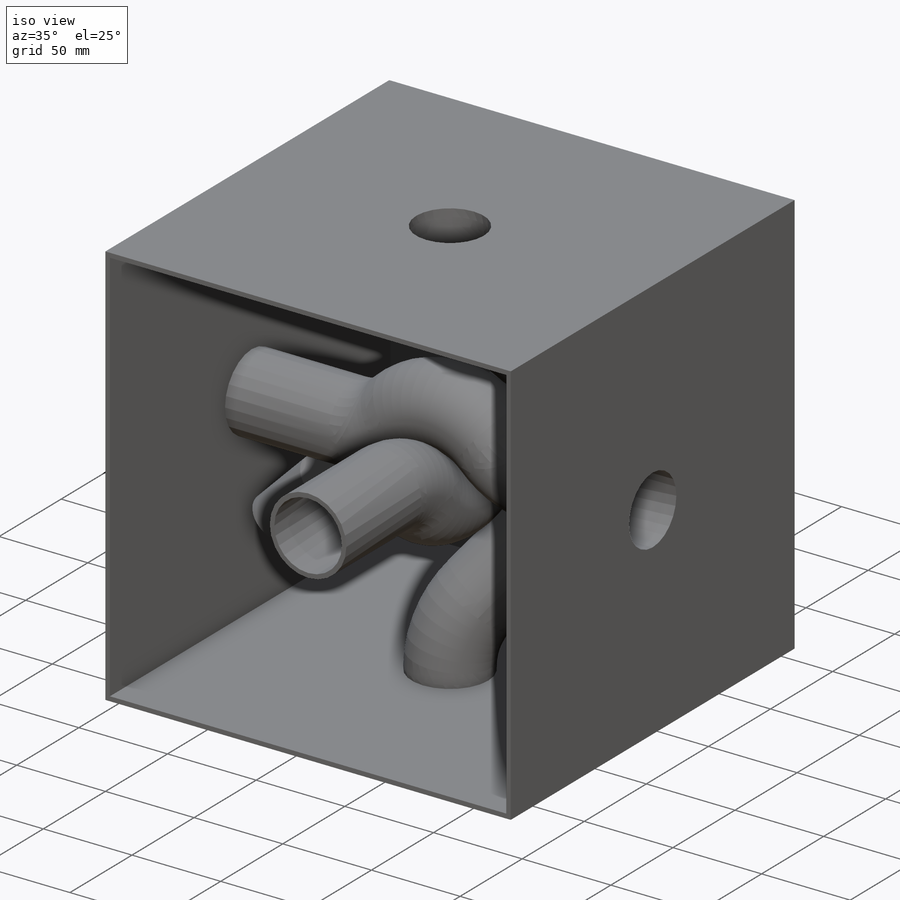
[diagram: iso view]
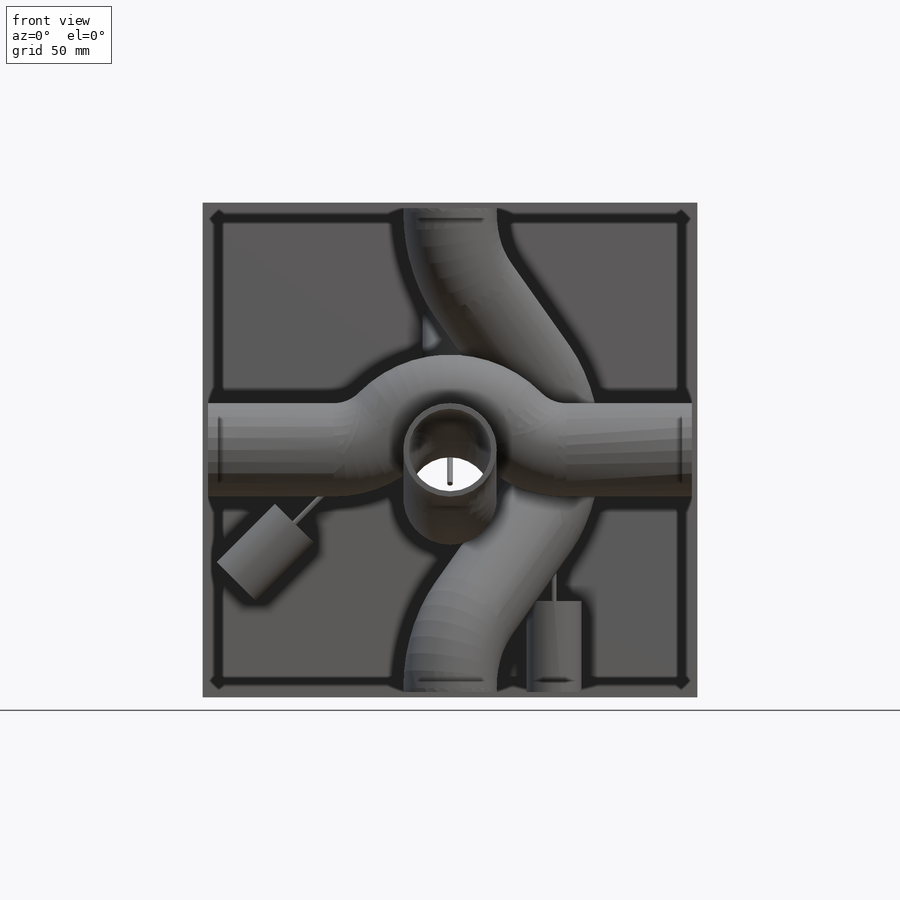
[diagram: front view]
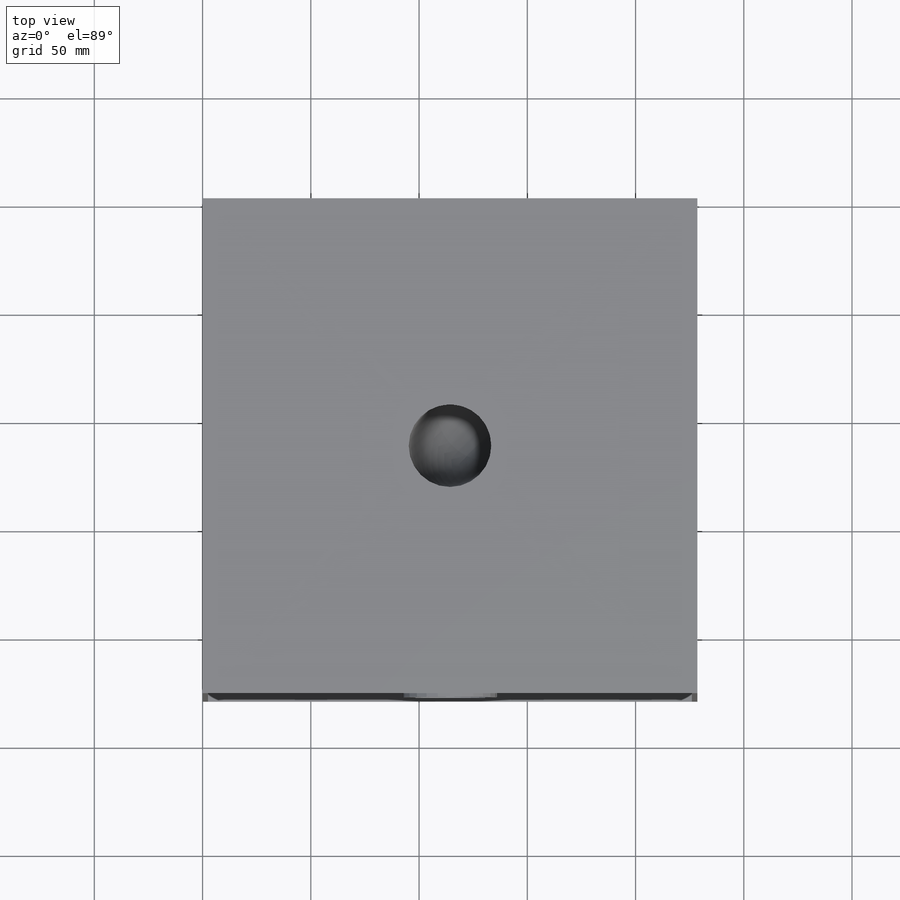
[diagram: top view]
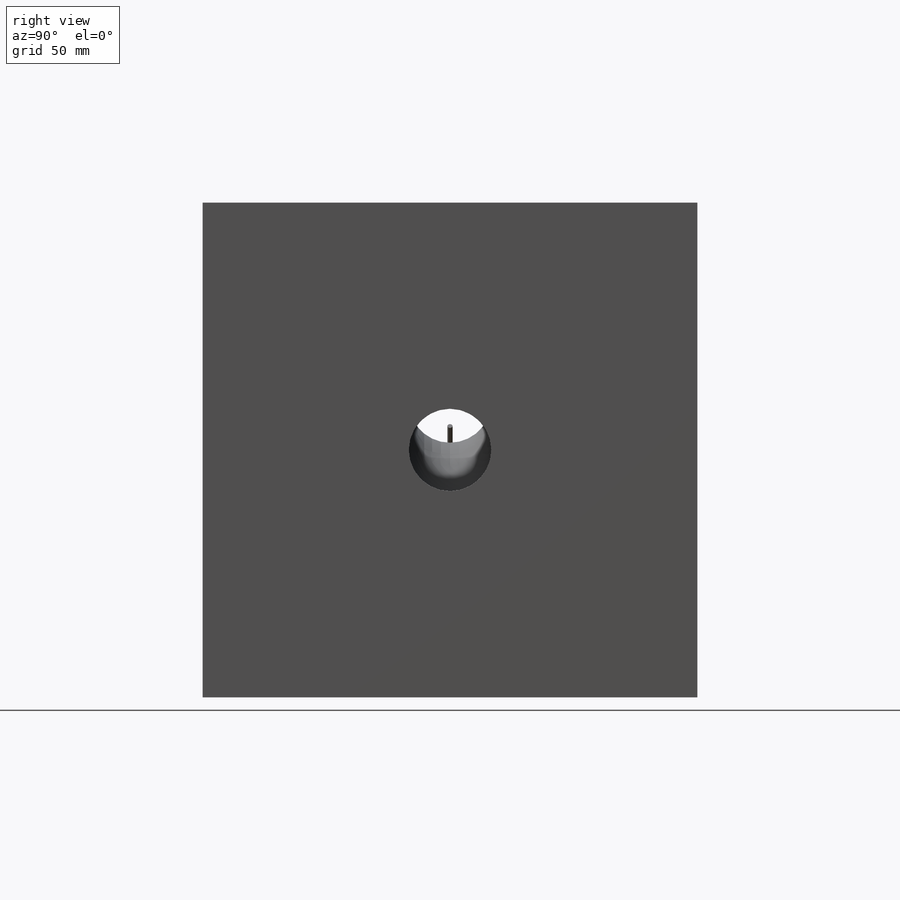
[diagram: right view]
SOLIDWORKS PART (.sldprt)
format: sldprt  version: not decoded by parser v0  size: 540,160 bytes
history: native  units: mm
features: sketch x19, extrude x8, plane x6, cut_extrude x4, sweep x3, material x1, shell x1 (+11 scaffold rows collapsed)
feature tree (53):
  scaffold x11  (default folders/planes/origin — collapsed)
  material  "Material <not specified>"
  sketch  "Sketch1"  dims[D1=228.6mm D2=228.6mm]
  extrude  "Boss-Extrude1"  Depth=228.6mm
  sketch  "Sketch2"  dims[D1=38.1mm]
  sketch  "Sketch3"  dims[D1=~19.595484mm]
  plane  "Plane1"  Offset=114.3mm
  sketch  "Sketch4"  dims[D1=76.2mm]
  sweep  "Cut-Sweep1"
  plane  "Plane2"  Offset=114.3mm
  sketch  "Sketch5"  dims[D1=76.2mm]
  sweep  "Cut-Sweep2"
  sketch  "Sketch6"
  plane  "Plane3"
  sketch  "Sketch7"  dims[c1.D1=50.8mm c1.D3=50.8mm c2.D1=50.8mm c2.D2=0.0mm c3.D1=25.4mm c3.D2=25.4mm c4.D1=25.4mm]
  sketch  "Sketch8"  dims[D1=~27.848328mm]
  sweep  "Cut-Sweep3"
  plane  "Plane4"
  sketch  "Sketch9"  dims[D1=2.54mm]
  shell  "Shell1"  Thickness=2.54mm
  sketch  "Sketch10"  dims[D1=2.54mm]
  extrude  "Boss-Extrude2"  Depth=223.52mm
  sketch  "Sketch11"  dims[D1=~19.209332mm]
  cut_extrude  "Cut-Extrude2"  Depth=2.54mm
  cut_extrude  "Cut-Extrude3"  Depth=50.8mm
  sketch  "Sketch12"  dims[D1=2.4892mm]
  extrude  "Boss-Extrude3"  Depth=63.5mm
  sketch  "Sketch14"  dims[D1=~12.503503mm]
  extrude  "Boss-Extrude4"  Depth=38.1mm
  plane  "Plane5"
  sketch  "Sketch15"  dims[D1=~2.305949mm]
  cut_extrude  "Cut-Extrude4"  Depth=1.27mm
  sketch  "Sketch16"  dims[D1=1.27mm]
  extrude  "Boss-Extrude5"  Depth=63.5mm
  sketch  "Sketch17"  dims[D1=~12.953733mm]
  extrude  "Boss-Extrude6"  Depth=38.1mm
  plane  "Plane6"  Offset=114.3mm
  sketch  "Sketch18"  dims[D1=~2.135017mm]
  cut_extrude  "Cut-Extrude5"  Depth=83.566mm
  sketch  "Sketch19"  dims[D1=2.413mm]
  extrude  "Boss-Extrude7"  Depth=69.85mm
  sketch  "Sketch20"  dims[D1=~12.744117mm]
  extrude  "Boss-Extrude8"  Depth=41.91mm
decode coverage: 31 of 35 modeling features carry decoded parameters
note: ~ marks probable driven/reference dimensions
note: suppression state not decoded; provenance and decode notes live in map.json
